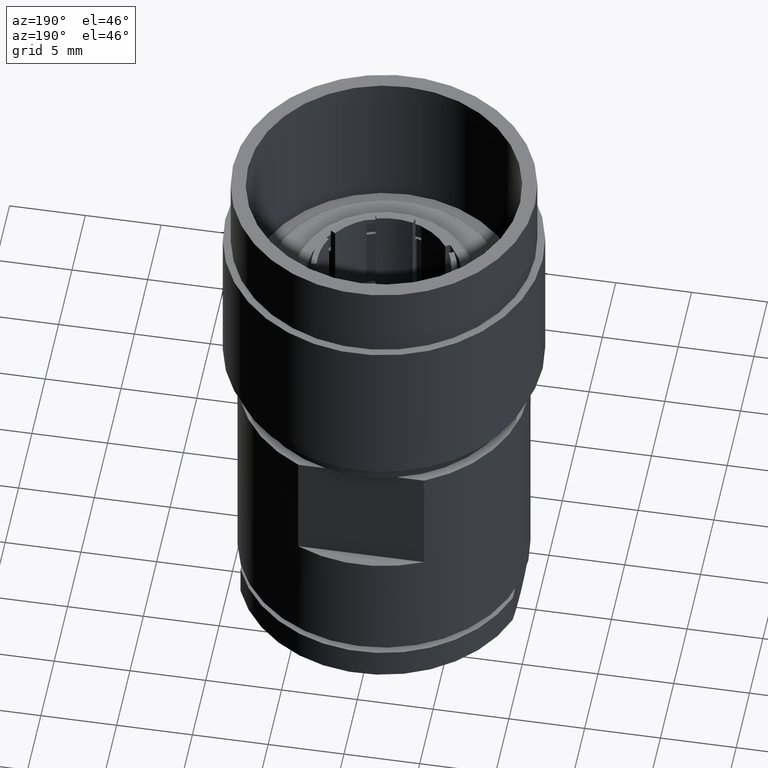
[diagram: clean part render]
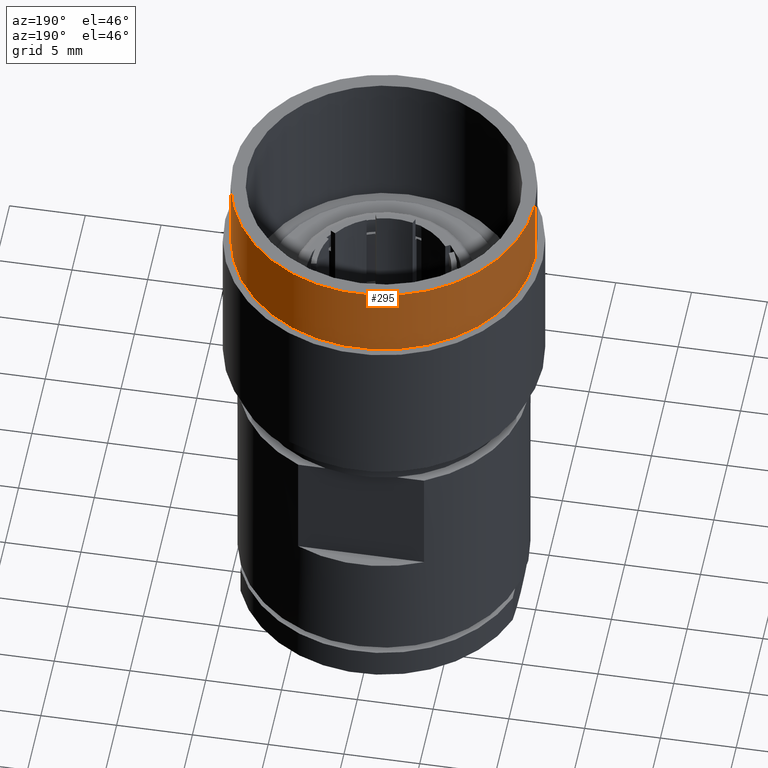
[diagram: same view with one face highlighted and labeled with its STEP entity id]
A machine part, auxiliary view. The second image highlights one B-rep face of the part: STEP entity #295.
In plain terms, the highlighted cylindrical surface (partial cylindrical patch) has radius 9.9695 mm, axis along (-0, -0, -1).
Its self-contained STEP definition (entity closure, byte-faithful):
#142 = VERTEX_POINT ( 'NONE', #2565 ) ;
#181 = VERTEX_POINT ( 'NONE', #2526 ) ;
#186 = VERTEX_POINT ( 'NONE', #2521 ) ;
#204 = VERTEX_POINT ( 'NONE', #2503 ) ;
#295 = ADVANCED_FACE ( 'NONE', ( #1997 ), #2031, .T. ) ;
#859 = AXIS2_PLACEMENT_3D ( 'NONE', #2104, #2103, #2102 ) ;
#860 = AXIS2_PLACEMENT_3D ( 'NONE', #2108, #2107, #2106 ) ;
#953 = AXIS2_PLACEMENT_3D ( 'NONE', #2459, #2460, #2467 ) ;
#1004 = EDGE_CURVE ( 'NONE', #186, #181, #1899, .T. ) ;
#1005 = EDGE_CURVE ( 'NONE', #186, #204, #1896, .T. ) ;
#1006 = EDGE_CURVE ( 'NONE', #204, #142, #1894, .T. ) ;
#1008 = EDGE_CURVE ( 'NONE', #181, #142, #1893, .T. ) ;
#1303 = ORIENTED_EDGE ( 'NONE', *, *, #1004, .F. ) ;
#1304 = ORIENTED_EDGE ( 'NONE', *, *, #1005, .T. ) ;
#1305 = ORIENTED_EDGE ( 'NONE', *, *, #1006, .T. ) ;
#1306 = ORIENTED_EDGE ( 'NONE', *, *, #1008, .F. ) ;
#1729 = EDGE_LOOP ( 'NONE', ( #1303, #1304, #1305, #1306 ) ) ;
#1888 = VECTOR ( 'NONE', #2105, 39.37007874015748100 ) ;
#1892 = VECTOR ( 'NONE', #2110, 39.37007874015748100 ) ;
#1893 = LINE ( 'NONE', #2101, #1888 ) ;
#1894 = CIRCLE ( 'NONE', #859, 0.3925000000000000700 ) ;
#1896 = LINE ( 'NONE', #2109, #1892 ) ;
#1899 = CIRCLE ( 'NONE', #860, 0.3925000000000000700 ) ;
#1997 = FACE_OUTER_BOUND ( 'NONE', #1729, .T. ) ;
#2031 = CYLINDRICAL_SURFACE ( 'NONE', #953, 0.3925000000000000700 ) ;
#2101 = CARTESIAN_POINT ( 'NONE',  ( -0.3925000000000000700, 0.0000000000000000000, 1.465000000000000100 ) ) ;
#2102 = DIRECTION ( 'NONE',  ( 1.000000000000000000, 0.0000000000000000000, 0.0000000000000000000 ) ) ;
#2103 = DIRECTION ( 'NONE',  ( 0.0000000000000000000, 0.0000000000000000000, 1.000000000000000000 ) ) ;
#2104 = CARTESIAN_POINT ( 'NONE',  ( 0.0000000000000000000, 0.0000000000000000000, 1.265000000000000100 ) ) ;
#2105 = DIRECTION ( 'NONE',  ( -0.0000000000000000000, -0.0000000000000000000, -1.000000000000000000 ) ) ;
#2106 = DIRECTION ( 'NONE',  ( 1.000000000000000000, 0.0000000000000000000, 0.0000000000000000000 ) ) ;
#2107 = DIRECTION ( 'NONE',  ( 0.0000000000000000000, 0.0000000000000000000, 1.000000000000000000 ) ) ;
#2108 = CARTESIAN_POINT ( 'NONE',  ( 0.0000000000000000000, 0.0000000000000000000, 1.465000000000000100 ) ) ;
#2109 = CARTESIAN_POINT ( 'NONE',  ( 0.3925000000000000700, 4.806738686653362400E-017, 1.465000000000000100 ) ) ;
#2110 = DIRECTION ( 'NONE',  ( -0.0000000000000000000, -0.0000000000000000000, -1.000000000000000000 ) ) ;
#2459 = CARTESIAN_POINT ( 'NONE',  ( 0.0000000000000000000, 0.0000000000000000000, 1.465000000000000100 ) ) ;
#2460 = DIRECTION ( 'NONE',  ( -0.0000000000000000000, -0.0000000000000000000, -1.000000000000000000 ) ) ;
#2467 = DIRECTION ( 'NONE',  ( -1.000000000000000000, 0.0000000000000000000, 0.0000000000000000000 ) ) ;
#2503 = CARTESIAN_POINT ( 'NONE',  ( 0.3925000000000000700, 4.806738686653362400E-017, 1.265000000000000100 ) ) ;
#2521 = CARTESIAN_POINT ( 'NONE',  ( 0.3925000000000000700, 4.806738686653362400E-017, 1.465000000000000100 ) ) ;
#2526 = CARTESIAN_POINT ( 'NONE',  ( -0.3925000000000000700, 0.0000000000000000000, 1.465000000000000100 ) ) ;
#2565 = CARTESIAN_POINT ( 'NONE',  ( -0.3925000000000000700, 0.0000000000000000000, 1.265000000000000100 ) ) ;